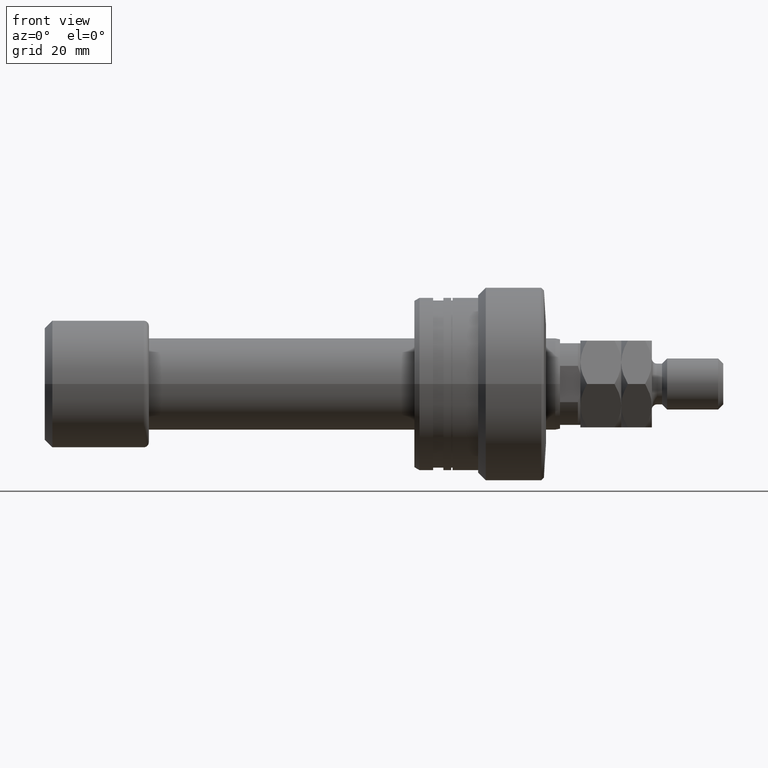
[diagram: clean part render]
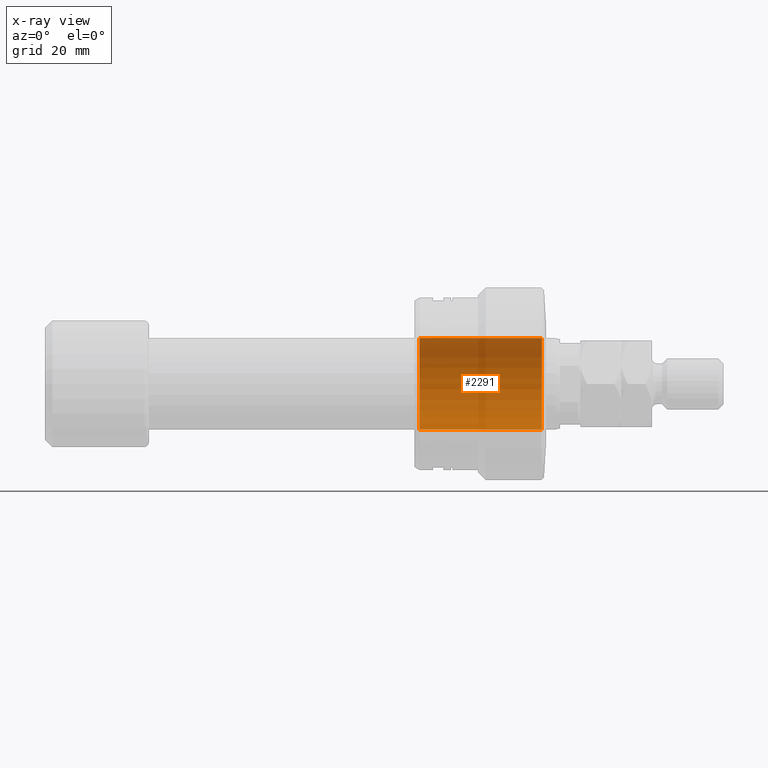
[diagram: x-ray — body ghosted, one internal face saturated and labeled with its STEP entity id]
A machine part, front view, then the same camera in x-ray: the body is ghosted and one INTERNAL B-rep face — a face not visible from any outside direction — is saturated and labeled: STEP entity #2291.
In plain terms, the highlighted cylindrical surface (partial cylindrical patch) has radius 9 mm, axis along (1, 0, 0).
Its self-contained STEP definition (entity closure, byte-faithful):
#81 = CARTESIAN_POINT ( 'NONE',  ( -25.50000000000003197, 0.000000000000000000, -9.000000000000000000 ) ) ;
#184 = VERTEX_POINT ( 'NONE', #81 ) ;
#199 = DIRECTION ( 'NONE',  ( 1.000000000000000000, -0.000000000000000000, -0.000000000000000000 ) ) ;
#218 = VERTEX_POINT ( 'NONE', #2587 ) ;
#310 = ORIENTED_EDGE ( 'NONE', *, *, #1947, .T. ) ;
#441 = EDGE_LOOP ( 'NONE', ( #2287, #606, #2803, #310 ) ) ;
#474 = VECTOR ( 'NONE', #199, 1000.000000000000000 ) ;
#606 = ORIENTED_EDGE ( 'NONE', *, *, #1690, .T. ) ;
#697 = DIRECTION ( 'NONE',  ( 1.000000000000000000, -0.000000000000000000, -0.000000000000000000 ) ) ;
#977 = DIRECTION ( 'NONE',  ( -1.000000000000000000, -0.000000000000000000, -0.000000000000000000 ) ) ;
#991 = AXIS2_PLACEMENT_3D ( 'NONE', #2382, #977, #2436 ) ;
#1174 = CARTESIAN_POINT ( 'NONE',  ( -1.500000000000000000, 1.102182119232617517E-15, 9.000000000000000000 ) ) ;
#1233 = EDGE_CURVE ( 'NONE', #218, #3465, #2980, .T. ) ;
#1320 = DIRECTION ( 'NONE',  ( 1.000000000000000000, -0.000000000000000000, -0.000000000000000000 ) ) ;
#1409 = EDGE_CURVE ( 'NONE', #184, #1860, #2838, .T. ) ;
#1523 = CARTESIAN_POINT ( 'NONE',  ( -51.95584412271570329, 1.102182119232617517E-15, 9.000000000000000000 ) ) ;
#1690 = EDGE_CURVE ( 'NONE', #218, #184, #3849, .T. ) ;
#1823 = VECTOR ( 'NONE', #1320, 1000.000000000000000 ) ;
#1860 = VERTEX_POINT ( 'NONE', #2590 ) ;
#1947 = EDGE_CURVE ( 'NONE', #1860, #3465, #3077, .T. ) ;
#2087 = AXIS2_PLACEMENT_3D ( 'NONE', #3801, #697, #3760 ) ;
#2287 = ORIENTED_EDGE ( 'NONE', *, *, #1233, .F. ) ;
#2291 = ADVANCED_FACE ( 'NONE', ( #2551 ), #2506, .F. ) ;
#2382 = CARTESIAN_POINT ( 'NONE',  ( -25.50000000000003197, 0.000000000000000000, 0.000000000000000000 ) ) ;
#2436 = DIRECTION ( 'NONE',  ( 0.000000000000000000, 0.000000000000000000, 1.000000000000000000 ) ) ;
#2506 = CYLINDRICAL_SURFACE ( 'NONE', #2087, 9.000000000000000000 ) ;
#2551 = FACE_OUTER_BOUND ( 'NONE', #441, .T. ) ;
#2574 = DIRECTION ( 'NONE',  ( 1.000000000000000000, 0.000000000000000000, 0.000000000000000000 ) ) ;
#2587 = CARTESIAN_POINT ( 'NONE',  ( -25.50000000000003197, 1.102182119232617517E-15, 9.000000000000000000 ) ) ;
#2590 = CARTESIAN_POINT ( 'NONE',  ( -1.500000000000000000, 0.000000000000000000, -9.000000000000000000 ) ) ;
#2803 = ORIENTED_EDGE ( 'NONE', *, *, #1409, .T. ) ;
#2838 = LINE ( 'NONE', #3783, #1823 ) ;
#2885 = CARTESIAN_POINT ( 'NONE',  ( -1.500000000000000000, 0.000000000000000000, 0.000000000000000000 ) ) ;
#2980 = LINE ( 'NONE', #1523, #474 ) ;
#3077 = CIRCLE ( 'NONE', #3399, 9.000000000000000000 ) ;
#3399 = AXIS2_PLACEMENT_3D ( 'NONE', #2885, #2574, #3825 ) ;
#3465 = VERTEX_POINT ( 'NONE', #1174 ) ;
#3760 = DIRECTION ( 'NONE',  ( 0.000000000000000000, 0.000000000000000000, -1.000000000000000000 ) ) ;
#3783 = CARTESIAN_POINT ( 'NONE',  ( -51.95584412271570329, 0.000000000000000000, -9.000000000000000000 ) ) ;
#3801 = CARTESIAN_POINT ( 'NONE',  ( -51.95584412271570329, 0.000000000000000000, 0.000000000000000000 ) ) ;
#3825 = DIRECTION ( 'NONE',  ( 0.000000000000000000, 0.000000000000000000, -1.000000000000000000 ) ) ;
#3849 = CIRCLE ( 'NONE', #991, 9.000000000000000000 ) ;